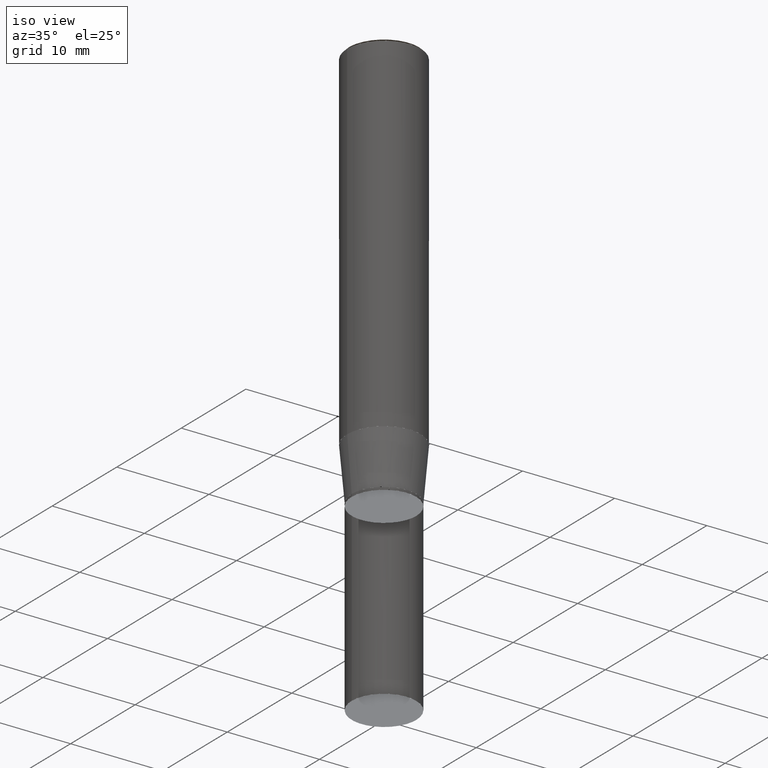
[diagram: clean part render]
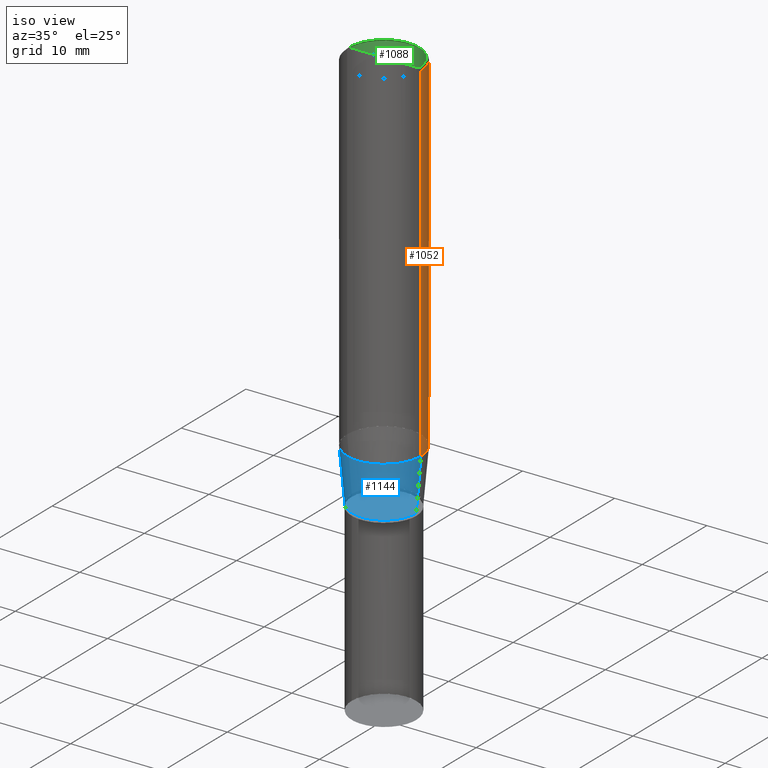
[diagram: same view with three faces highlighted in distinct colors, each labeled with its STEP entity id]
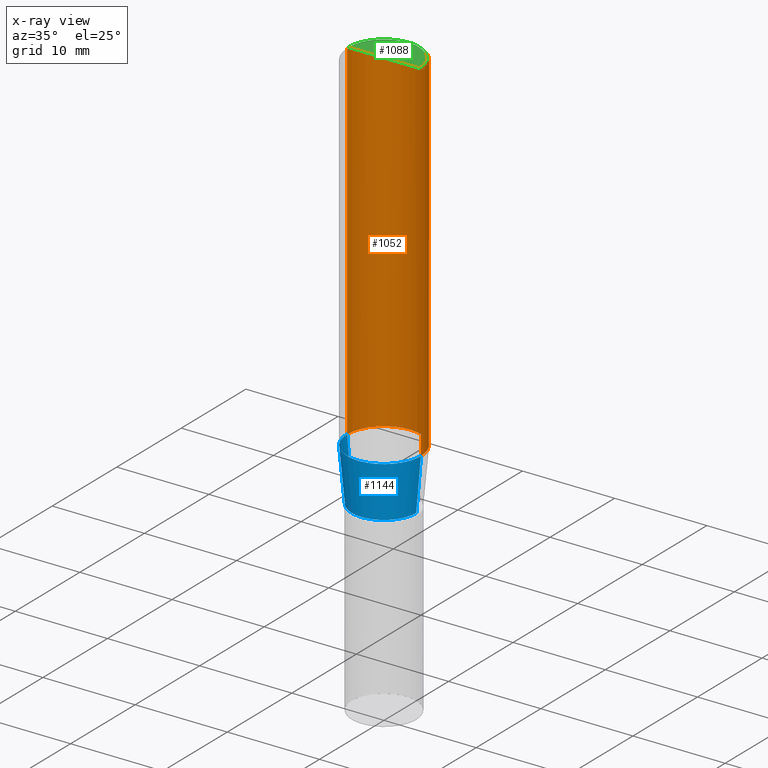
[diagram: x-ray of the same camera — body ghosted, the three highlighted faces saturated]
A machine part, iso view with three faces highlighted in distinct colors.
The next image is the same camera in x-ray (body ghosted, the three faces saturated) — at least one of them is partly hidden behind the body in this view.
Their STEP definitions:

[orange] entity #1052 — the highlighted face is a freeform B-spline surface patch.
#835=CARTESIAN_POINT('',(4.0,0.0,0.0));
#836=CARTESIAN_POINT('',(4.0,4.0,0.0));
#837=CARTESIAN_POINT('',(0.0,4.0,0.0));
#838=CARTESIAN_POINT('',(-4.0,4.0,0.0));
#839=CARTESIAN_POINT('',(-4.0,0.0,0.0));
#840=CARTESIAN_POINT('',(4.0,0.0,37.8));
#841=CARTESIAN_POINT('',(4.0,4.0,37.8));
#842=CARTESIAN_POINT('',(0.0,4.0,37.8));
#843=CARTESIAN_POINT('',(-4.0,4.0,37.8));
#844=CARTESIAN_POINT('',(-4.0,0.0,37.8));
#1033=(
BOUNDED_SURFACE()
B_SPLINE_SURFACE(1,2,(
(#835,#836,#837,#838,#839),
(#840,#841,#842,#843,#844)
), .UNSPECIFIED.,.F.,.F.,.F.)
B_SPLINE_SURFACE_WITH_KNOTS((2,2),(3,2,3),(
0.0,1.0),(
0.0,0.5,1.0), .UNSPECIFIED.)
GEOMETRIC_REPRESENTATION_ITEM()
RATIONAL_B_SPLINE_SURFACE(((1.0,0.707106781187,1.0,0.707106781187,1.0),
(1.0,0.707106781187,1.0,0.707106781187,1.0)
))
REPRESENTATION_ITEM('')
SURFACE()
);
#1034=(
BOUNDED_CURVE()
B_SPLINE_CURVE(2,(#839,#838,#837,#836,#835),.UNSPECIFIED.,.F.,.F.)
B_SPLINE_CURVE_WITH_KNOTS((3,2,3),
(0.0,0.5,1.0),.UNSPECIFIED.)
CURVE()
GEOMETRIC_REPRESENTATION_ITEM()
RATIONAL_B_SPLINE_CURVE((1.0,0.707106781187,1.0,0.707106781187,1.0))
REPRESENTATION_ITEM('')
);
#1035=(
BOUNDED_CURVE()
B_SPLINE_CURVE(1,(#835,#840),.UNSPECIFIED.,.F.,.F.)
B_SPLINE_CURVE_WITH_KNOTS((2,2),
(0.0,1.0),.UNSPECIFIED.)
CURVE()
GEOMETRIC_REPRESENTATION_ITEM()
RATIONAL_B_SPLINE_CURVE((1.0,1.0))
REPRESENTATION_ITEM('')
);
#1036=(
BOUNDED_CURVE()
B_SPLINE_CURVE(2,(#840,#841,#842,#843,#844),.UNSPECIFIED.,.F.,.F.)
B_SPLINE_CURVE_WITH_KNOTS((3,2,3),
(0.0,0.5,1.0),.UNSPECIFIED.)
CURVE()
GEOMETRIC_REPRESENTATION_ITEM()
RATIONAL_B_SPLINE_CURVE((1.0,0.707106781187,1.0,0.707106781187,1.0))
REPRESENTATION_ITEM('')
);
#1037=(
BOUNDED_CURVE()
B_SPLINE_CURVE(1,(#844,#839),.UNSPECIFIED.,.F.,.F.)
B_SPLINE_CURVE_WITH_KNOTS((2,2),
(0.0,1.0),.UNSPECIFIED.)
CURVE()
GEOMETRIC_REPRESENTATION_ITEM()
RATIONAL_B_SPLINE_CURVE((1.0,1.0))
REPRESENTATION_ITEM('')
);
#1038=VERTEX_POINT('',#835);
#1039=VERTEX_POINT('',#839);
#1040=VERTEX_POINT('',#840);
#1041=VERTEX_POINT('',#844);
#1042=EDGE_CURVE('',#1039,#1038,#1034,.T.);
#1043=EDGE_CURVE('',#1038,#1040,#1035,.T.);
#1044=EDGE_CURVE('',#1040,#1041,#1036,.T.);
#1045=EDGE_CURVE('',#1041,#1039,#1037,.T.);
#1046=ORIENTED_EDGE('',*,*,#1042,.T.);
#1047=ORIENTED_EDGE('',*,*,#1043,.T.);
#1048=ORIENTED_EDGE('',*,*,#1044,.T.);
#1049=ORIENTED_EDGE('',*,*,#1045,.T.);
#1050=EDGE_LOOP('',(#1046,#1047,#1048,#1049));
#1051=FACE_OUTER_BOUND('',#1050,.T.);
#1052=ADVANCED_FACE('',(#1051),#1033,.T.);

[blue] entity #1144 — the highlighted face is a freeform B-spline surface patch.
#830=CARTESIAN_POINT('',(3.5,0.0,-5.715026151381));
#834=CARTESIAN_POINT('',(-3.5,0.0,-5.715026151381));
#835=CARTESIAN_POINT('',(4.0,0.0,0.0));
#839=CARTESIAN_POINT('',(-4.0,0.0,0.0));
#851=CARTESIAN_POINT('',(-3.5,-3.5,-5.715026151381));
#852=CARTESIAN_POINT('',(0.0,-3.5,-5.715026151381));
#853=CARTESIAN_POINT('',(3.5,-3.5,-5.715026151381));
#854=CARTESIAN_POINT('',(-4.0,-4.0,0.0));
#855=CARTESIAN_POINT('',(0.0,-4.0,0.0));
#856=CARTESIAN_POINT('',(4.0,-4.0,0.0));
#1125=(
BOUNDED_SURFACE()
B_SPLINE_SURFACE(1,2,(
(#834,#851,#852,#853,#830),
(#839,#854,#855,#856,#835)
), .UNSPECIFIED.,.F.,.F.,.F.)
B_SPLINE_SURFACE_WITH_KNOTS((2,2),(3,2,3),(
0.0,1.0),(
0.0,0.5,1.0), .UNSPECIFIED.)
GEOMETRIC_REPRESENTATION_ITEM()
RATIONAL_B_SPLINE_SURFACE(((1.0,0.707106781187,1.0,0.707106781187,1.0),
(1.0,0.707106781187,1.0,0.707106781187,1.0)
))
REPRESENTATION_ITEM('')
SURFACE()
);
#1126=(
BOUNDED_CURVE()
B_SPLINE_CURVE(2,(#830,#853,#852,#851,#834),.UNSPECIFIED.,.F.,.F.)
B_SPLINE_CURVE_WITH_KNOTS((3,2,3),
(0.0,0.5,1.0),.UNSPECIFIED.)
CURVE()
GEOMETRIC_REPRESENTATION_ITEM()
RATIONAL_B_SPLINE_CURVE((1.0,0.707106781187,1.0,0.707106781187,1.0))
REPRESENTATION_ITEM('')
);
#1127=(
BOUNDED_CURVE()
B_SPLINE_CURVE(1,(#834,#839),.UNSPECIFIED.,.F.,.F.)
B_SPLINE_CURVE_WITH_KNOTS((2,2),
(0.0,1.0),.UNSPECIFIED.)
CURVE()
GEOMETRIC_REPRESENTATION_ITEM()
RATIONAL_B_SPLINE_CURVE((1.0,1.0))
REPRESENTATION_ITEM('')
);
#1128=(
BOUNDED_CURVE()
B_SPLINE_CURVE(2,(#839,#854,#855,#856,#835),.UNSPECIFIED.,.F.,.F.)
B_SPLINE_CURVE_WITH_KNOTS((3,2,3),
(0.0,0.5,1.0),.UNSPECIFIED.)
CURVE()
GEOMETRIC_REPRESENTATION_ITEM()
RATIONAL_B_SPLINE_CURVE((1.0,0.707106781187,1.0,0.707106781187,1.0))
REPRESENTATION_ITEM('')
);
#1129=(
BOUNDED_CURVE()
B_SPLINE_CURVE(1,(#835,#830),.UNSPECIFIED.,.F.,.F.)
B_SPLINE_CURVE_WITH_KNOTS((2,2),
(0.0,1.0),.UNSPECIFIED.)
CURVE()
GEOMETRIC_REPRESENTATION_ITEM()
RATIONAL_B_SPLINE_CURVE((1.0,1.0))
REPRESENTATION_ITEM('')
);
#1130=VERTEX_POINT('',#830);
#1131=VERTEX_POINT('',#834);
#1132=VERTEX_POINT('',#835);
#1133=VERTEX_POINT('',#839);
#1134=EDGE_CURVE('',#1130,#1131,#1126,.T.);
#1135=EDGE_CURVE('',#1131,#1133,#1127,.T.);
#1136=EDGE_CURVE('',#1133,#1132,#1128,.T.);
#1137=EDGE_CURVE('',#1132,#1130,#1129,.T.);
#1138=ORIENTED_EDGE('',*,*,#1134,.T.);
#1139=ORIENTED_EDGE('',*,*,#1135,.T.);
#1140=ORIENTED_EDGE('',*,*,#1136,.T.);
#1141=ORIENTED_EDGE('',*,*,#1137,.T.);
#1142=EDGE_LOOP('',(#1138,#1139,#1140,#1141));
#1143=FACE_OUTER_BOUND('',#1142,.T.);
#1144=ADVANCED_FACE('',(#1143),#1125,.T.);

[green] entity #1088 — the highlighted face is a freeform B-spline surface patch.
#845=CARTESIAN_POINT('',(3.8,0.0,38.0));
#846=CARTESIAN_POINT('',(3.8,3.8,38.0));
#847=CARTESIAN_POINT('',(0.0,3.8,38.0));
#848=CARTESIAN_POINT('',(-3.8,3.8,38.0));
#849=CARTESIAN_POINT('',(-3.8,0.0,38.0));
#850=CARTESIAN_POINT('',(0.0,0.0,38.0));
#1073=(
BOUNDED_SURFACE()
B_SPLINE_SURFACE(1,2,(
(#845,#846,#847,#848,#849),
(#850,#850,#850,#850,#850)
), .UNSPECIFIED.,.F.,.F.,.F.)
B_SPLINE_SURFACE_WITH_KNOTS((2,2),(3,2,3),(
0.0,1.0),(
0.0,0.5,1.0), .UNSPECIFIED.)
GEOMETRIC_REPRESENTATION_ITEM()
RATIONAL_B_SPLINE_SURFACE(((1.0,0.707106781187,1.0,0.707106781187,1.0),
(1.0,0.707106781187,1.0,0.707106781187,1.0)
))
REPRESENTATION_ITEM('')
SURFACE()
);
#1074=(
BOUNDED_CURVE()
B_SPLINE_CURVE(2,(#849,#848,#847,#846,#845),.UNSPECIFIED.,.F.,.F.)
B_SPLINE_CURVE_WITH_KNOTS((3,2,3),
(0.0,0.5,1.0),.UNSPECIFIED.)
CURVE()
GEOMETRIC_REPRESENTATION_ITEM()
RATIONAL_B_SPLINE_CURVE((1.0,0.707106781187,1.0,0.707106781187,1.0))
REPRESENTATION_ITEM('')
);
#1075=(
BOUNDED_CURVE()
B_SPLINE_CURVE(1,(#845,#850),.UNSPECIFIED.,.F.,.F.)
B_SPLINE_CURVE_WITH_KNOTS((2,2),
(0.0,1.0),.UNSPECIFIED.)
CURVE()
GEOMETRIC_REPRESENTATION_ITEM()
RATIONAL_B_SPLINE_CURVE((1.0,1.0))
REPRESENTATION_ITEM('')
);
#1076=(
BOUNDED_CURVE()
B_SPLINE_CURVE(1,(#850,#849),.UNSPECIFIED.,.F.,.F.)
B_SPLINE_CURVE_WITH_KNOTS((2,2),
(0.0,1.0),.UNSPECIFIED.)
CURVE()
GEOMETRIC_REPRESENTATION_ITEM()
RATIONAL_B_SPLINE_CURVE((1.0,1.0))
REPRESENTATION_ITEM('')
);
#1077=VERTEX_POINT('',#845);
#1078=VERTEX_POINT('',#849);
#1079=VERTEX_POINT('',#850);
#1080=EDGE_CURVE('',#1078,#1077,#1074,.T.);
#1081=EDGE_CURVE('',#1077,#1079,#1075,.T.);
#1082=EDGE_CURVE('',#1079,#1078,#1076,.T.);
#1083=ORIENTED_EDGE('',*,*,#1080,.T.);
#1084=ORIENTED_EDGE('',*,*,#1081,.T.);
#1085=ORIENTED_EDGE('',*,*,#1082,.T.);
#1086=EDGE_LOOP('',(#1083,#1084,#1085));
#1087=FACE_OUTER_BOUND('',#1086,.T.);
#1088=ADVANCED_FACE('',(#1087),#1073,.T.);